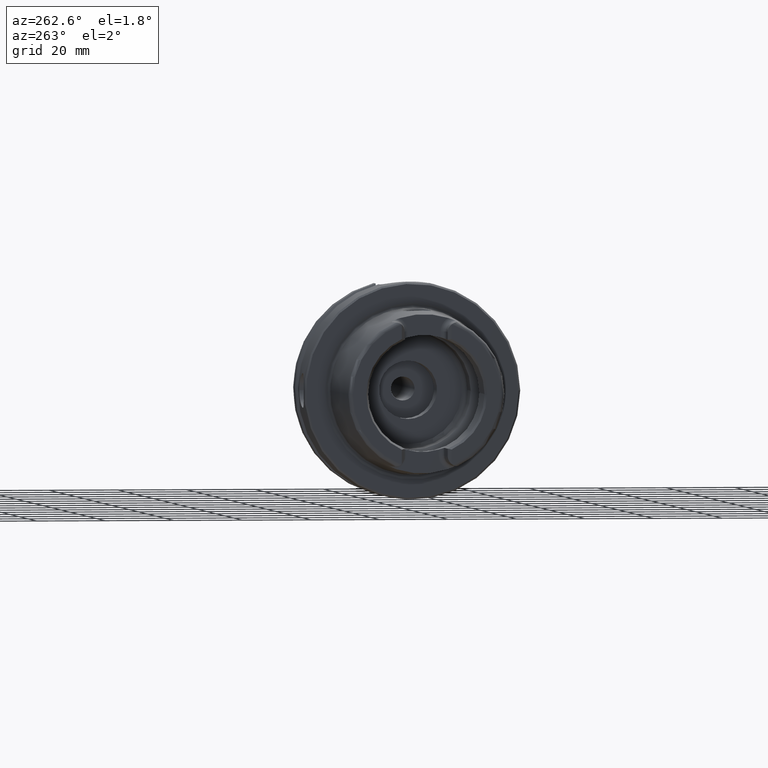
[diagram: clean part render]
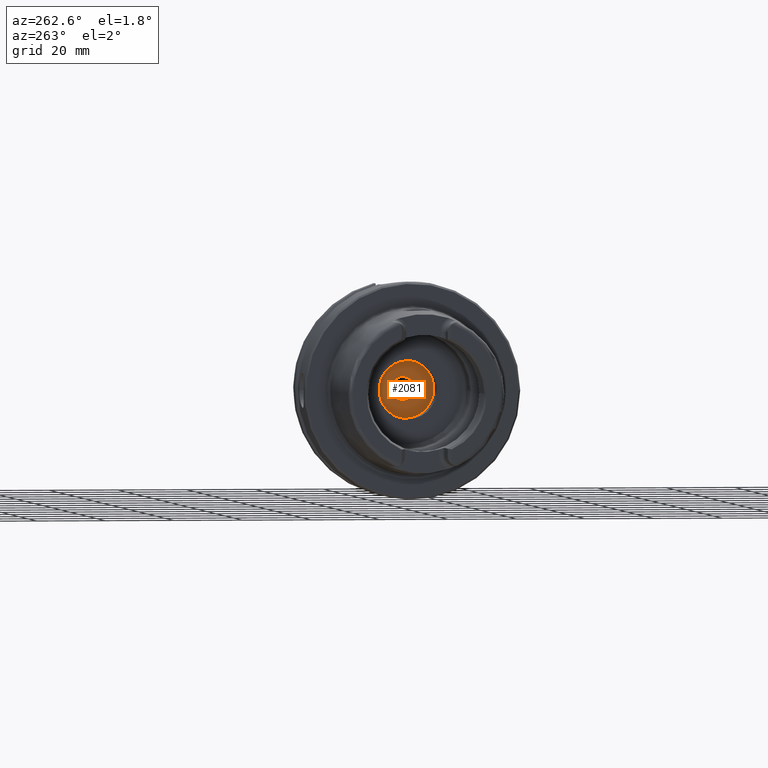
[diagram: same view with one face highlighted and labeled with its STEP entity id]
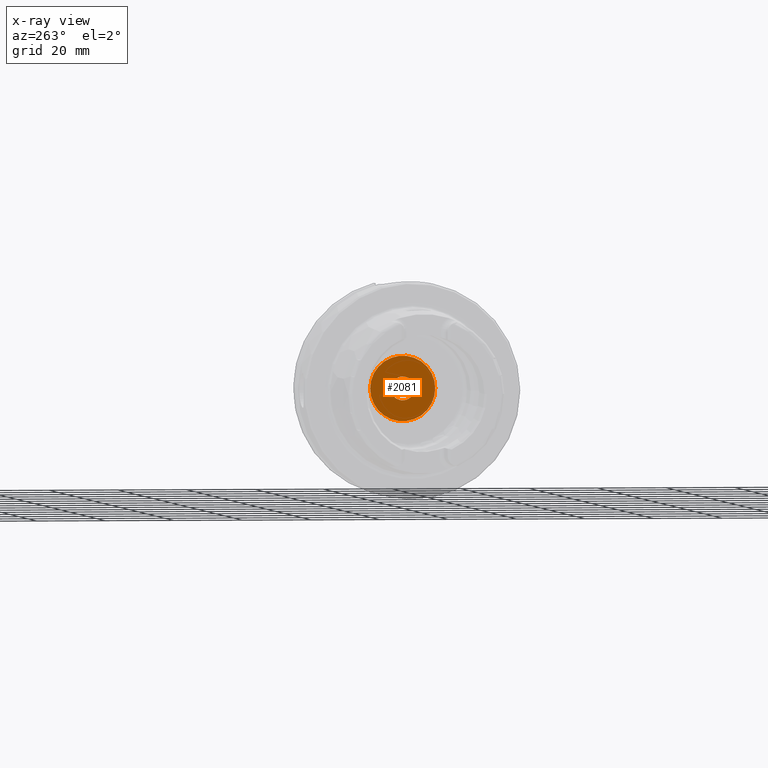
[diagram: x-ray of the same camera — body ghosted, the highlighted face saturated]
A machine part, auxiliary view. The second image highlights one B-rep face of the part: STEP entity #2081.
The next image is the same camera in x-ray: the body ghosted, the highlighted face saturated — about 0% of this face is hidden behind the body in this view.
In plain terms, the highlighted planar face has unit normal (1, 0, 0).
Its self-contained STEP definition (entity closure, byte-faithful):
#98=FACE_BOUND('',#447,.T.);
#140=PLANE('',#2340);
#318=FACE_OUTER_BOUND('',#446,.T.);
#446=EDGE_LOOP('',(#1901));
#447=EDGE_LOOP('',(#1902));
#700=CIRCLE('',#2153,3.4585);
#789=CIRCLE('',#2341,9.5);
#835=VERTEX_POINT('',#3067);
#998=VERTEX_POINT('',#4404);
#1050=EDGE_CURVE('',#835,#835,#700,.T.);
#1304=EDGE_CURVE('',#998,#998,#789,.T.);
#1901=ORIENTED_EDGE('',*,*,#1304,.T.);
#1902=ORIENTED_EDGE('',*,*,#1050,.T.);
#2081=ADVANCED_FACE('',(#318,#98),#140,.F.);
#2153=AXIS2_PLACEMENT_3D('',#3069,#2459,#2460);
#2340=AXIS2_PLACEMENT_3D('',#4403,#2918,#2919);
#2341=AXIS2_PLACEMENT_3D('',#4405,#2920,#2921);
#2459=DIRECTION('center_axis',(1.,0.,0.));
#2460=DIRECTION('ref_axis',(0.,0.,-1.));
#2918=DIRECTION('center_axis',(1.,0.,0.));
#2919=DIRECTION('ref_axis',(0.,0.,-1.));
#2920=DIRECTION('center_axis',(-1.,0.,0.));
#2921=DIRECTION('ref_axis',(0.,0.,1.));
#3067=CARTESIAN_POINT('',(22.,-4.23544095485112E-16,3.4585));
#3069=CARTESIAN_POINT('Origin',(22.,0.,0.));
#4403=CARTESIAN_POINT('Origin',(22.,9.5,0.));
#4404=CARTESIAN_POINT('',(22.,-9.5,1.16341445918999E-15));
#4405=CARTESIAN_POINT('Origin',(22.,0.,0.));